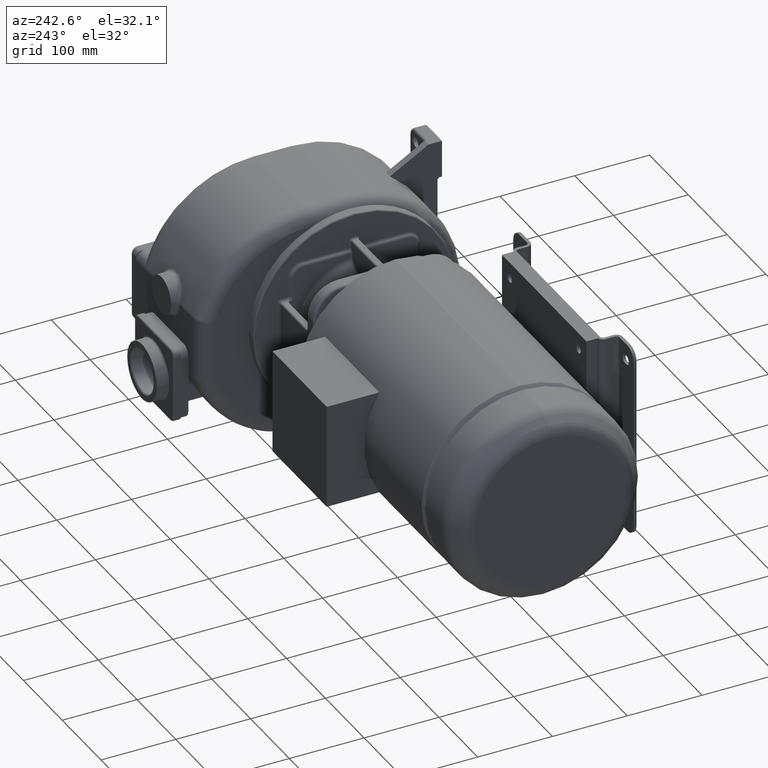
[diagram: clean part render]
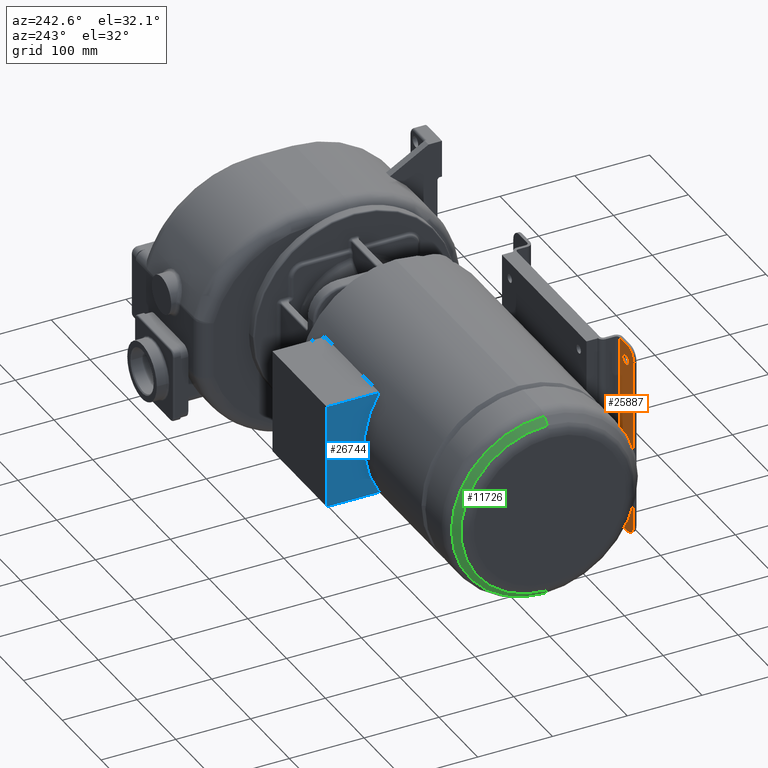
[diagram: same view with three faces highlighted in distinct colors, each labeled with its STEP entity id]
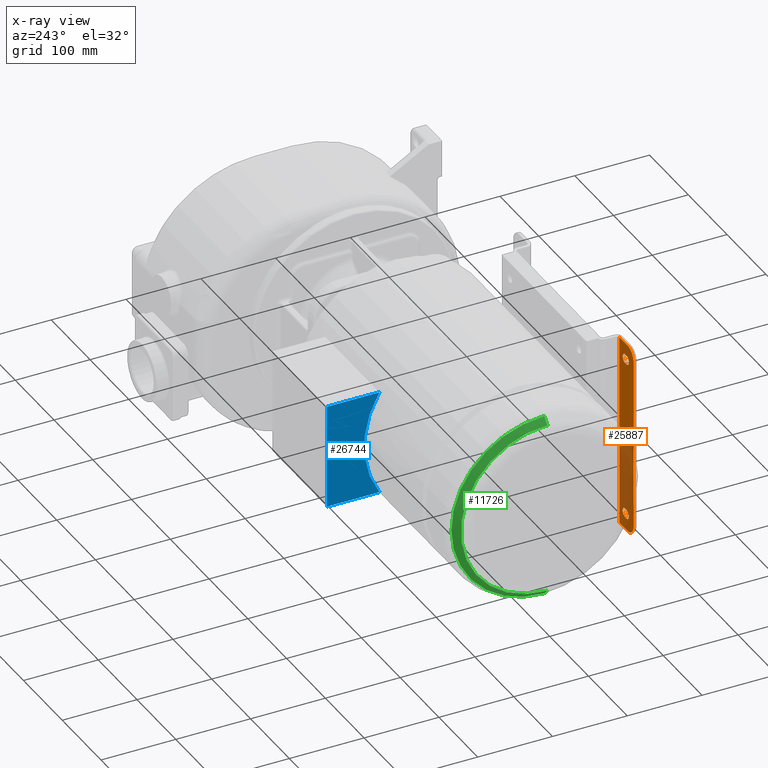
[diagram: x-ray of the same camera — body ghosted, the three highlighted faces saturated]
A machine part, auxiliary view with three faces highlighted in distinct colors.
The next image is the same camera in x-ray (body ghosted, the three faces saturated) — at least one of them is partly hidden behind the body in this view.
Their STEP definitions:

[orange] entity #25887 — the highlighted planar face has unit normal (0, 1, 0).
#9779=DIRECTION('',(-1.E0,0.E0,0.E0));
#9780=VECTOR('',#9779,2.1E1);
#9781=CARTESIAN_POINT('',(1.21E2,-1.56E2,1.3E2));
#9782=LINE('',#9781,#9780);
#9791=CARTESIAN_POINT('',(1.E2,-1.56E2,1.15E2));
#9792=DIRECTION('',(0.E0,1.E0,0.E0));
#9793=DIRECTION('',(-1.E0,0.E0,-2.463214817302E-14));
#9794=AXIS2_PLACEMENT_3D('',#9791,#9792,#9793);
#9796=CARTESIAN_POINT('',(1.E2,-1.56E2,-1.15E2));
#9797=DIRECTION('',(0.E0,1.E0,0.E0));
#9798=DIRECTION('',(-1.231607408651E-14,0.E0,-1.E0));
#9799=AXIS2_PLACEMENT_3D('',#9796,#9797,#9798);
#9801=DIRECTION('',(0.E0,0.E0,1.E0));
#9802=VECTOR('',#9801,2.6E2);
#9803=CARTESIAN_POINT('',(1.21E2,-1.56E2,-1.3E2));
#9804=LINE('',#9803,#9802);
#9805=CARTESIAN_POINT('',(1.03E2,-1.56E2,1.08E2));
#9806=DIRECTION('',(0.E0,1.E0,0.E0));
#9807=DIRECTION('',(0.E0,0.E0,-1.E0));
#9808=AXIS2_PLACEMENT_3D('',#9805,#9806,#9807);
#9810=DIRECTION('',(-1.E0,0.E0,0.E0));
#9811=VECTOR('',#9810,4.E0);
#9812=CARTESIAN_POINT('',(1.07E2,-1.56E2,1.14E2));
#9813=LINE('',#9812,#9811);
#9814=CARTESIAN_POINT('',(1.07E2,-1.56E2,1.08E2));
#9815=DIRECTION('',(0.E0,1.E0,0.E0));
#9816=DIRECTION('',(0.E0,0.E0,1.E0));
#9817=AXIS2_PLACEMENT_3D('',#9814,#9815,#9816);
#9819=DIRECTION('',(1.E0,0.E0,0.E0));
#9820=VECTOR('',#9819,4.E0);
#9821=CARTESIAN_POINT('',(1.03E2,-1.56E2,1.02E2));
#9822=LINE('',#9821,#9820);
#9823=CARTESIAN_POINT('',(1.03E2,-1.56E2,-1.08E2));
#9824=DIRECTION('',(0.E0,1.E0,0.E0));
#9825=DIRECTION('',(0.E0,0.E0,-1.E0));
#9826=AXIS2_PLACEMENT_3D('',#9823,#9824,#9825);
#9828=DIRECTION('',(-1.E0,0.E0,0.E0));
#9829=VECTOR('',#9828,4.E0);
#9830=CARTESIAN_POINT('',(1.07E2,-1.56E2,-1.02E2));
#9831=LINE('',#9830,#9829);
#9832=CARTESIAN_POINT('',(1.07E2,-1.56E2,-1.08E2));
#9833=DIRECTION('',(0.E0,1.E0,0.E0));
#9834=DIRECTION('',(0.E0,0.E0,1.E0));
#9835=AXIS2_PLACEMENT_3D('',#9832,#9833,#9834);
#9837=DIRECTION('',(1.E0,0.E0,0.E0));
#9838=VECTOR('',#9837,4.E0);
#9839=CARTESIAN_POINT('',(1.03E2,-1.56E2,-1.14E2));
#9840=LINE('',#9839,#9838);
#9853=DIRECTION('',(0.E0,0.E0,1.E0));
#9854=VECTOR('',#9853,2.3E2);
#9855=CARTESIAN_POINT('',(8.5E1,-1.56E2,-1.15E2));
#9856=LINE('',#9855,#9854);
#9915=DIRECTION('',(-1.E0,0.E0,0.E0));
#9916=VECTOR('',#9915,2.1E1);
#9917=CARTESIAN_POINT('',(1.21E2,-1.56E2,-1.3E2));
#9918=LINE('',#9917,#9916);
#10499=CARTESIAN_POINT('',(1.21E2,-1.56E2,-1.3E2));
#10500=VERTEX_POINT('',#10499);
#10511=CARTESIAN_POINT('',(1.21E2,-1.56E2,1.3E2));
#10512=VERTEX_POINT('',#10511);
#10545=CARTESIAN_POINT('',(8.5E1,-1.56E2,1.15E2));
#10546=CARTESIAN_POINT('',(1.E2,-1.56E2,1.3E2));
#10547=VERTEX_POINT('',#10545);
#10548=VERTEX_POINT('',#10546);
#10561=CARTESIAN_POINT('',(1.E2,-1.56E2,-1.3E2));
#10562=CARTESIAN_POINT('',(8.5E1,-1.56E2,-1.15E2));
#10563=VERTEX_POINT('',#10561);
#10564=VERTEX_POINT('',#10562);
#10617=CARTESIAN_POINT('',(1.03E2,-1.56E2,1.02E2));
#10618=CARTESIAN_POINT('',(1.03E2,-1.56E2,1.14E2));
#10619=VERTEX_POINT('',#10617);
#10620=VERTEX_POINT('',#10618);
#10621=CARTESIAN_POINT('',(1.07E2,-1.56E2,1.02E2));
#10622=VERTEX_POINT('',#10621);
#10623=CARTESIAN_POINT('',(1.07E2,-1.56E2,1.14E2));
#10624=VERTEX_POINT('',#10623);
#10625=CARTESIAN_POINT('',(1.03E2,-1.56E2,-1.14E2));
#10626=CARTESIAN_POINT('',(1.03E2,-1.56E2,-1.02E2));
#10627=VERTEX_POINT('',#10625);
#10628=VERTEX_POINT('',#10626);
#10629=CARTESIAN_POINT('',(1.07E2,-1.56E2,-1.14E2));
#10630=VERTEX_POINT('',#10629);
#10631=CARTESIAN_POINT('',(1.07E2,-1.56E2,-1.02E2));
#10632=VERTEX_POINT('',#10631);
#25851=CARTESIAN_POINT('',(1.21E2,-1.56E2,-1.3E2));
#25852=DIRECTION('',(0.E0,1.E0,0.E0));
#25853=DIRECTION('',(-1.E0,0.E0,0.E0));
#25854=AXIS2_PLACEMENT_3D('',#25851,#25852,#25853);
#25855=PLANE('',#25854);
#25856=ORIENTED_EDGE('',*,*,#25841,.F.);
#25858=ORIENTED_EDGE('',*,*,#25857,.F.);
#25860=ORIENTED_EDGE('',*,*,#25859,.F.);
#25862=ORIENTED_EDGE('',*,*,#25861,.F.);
#25863=ORIENTED_EDGE('',*,*,#25803,.T.);
#25864=ORIENTED_EDGE('',*,*,#25828,.T.);
#25865=EDGE_LOOP('',(#25856,#25858,#25860,#25862,#25863,#25864));
#25866=FACE_OUTER_BOUND('',#25865,.F.);
#25868=ORIENTED_EDGE('',*,*,#25867,.T.);
#25870=ORIENTED_EDGE('',*,*,#25869,.F.);
#25872=ORIENTED_EDGE('',*,*,#25871,.T.);
#25874=ORIENTED_EDGE('',*,*,#25873,.F.);
#25875=EDGE_LOOP('',(#25868,#25870,#25872,#25874));
#25876=FACE_BOUND('',#25875,.F.);
#25878=ORIENTED_EDGE('',*,*,#25877,.T.);
#25880=ORIENTED_EDGE('',*,*,#25879,.F.);
#25882=ORIENTED_EDGE('',*,*,#25881,.T.);
#25884=ORIENTED_EDGE('',*,*,#25883,.F.);
#25885=EDGE_LOOP('',(#25878,#25880,#25882,#25884));
#25886=FACE_BOUND('',#25885,.F.);
#25887=ADVANCED_FACE('',(#25866,#25876,#25886),#25855,.T.);
#9795=CIRCLE('',#9794,1.5E1);
#9800=CIRCLE('',#9799,1.5E1);
#9809=CIRCLE('',#9808,6.E0);
#9818=CIRCLE('',#9817,6.E0);
#9827=CIRCLE('',#9826,6.E0);
#9836=CIRCLE('',#9835,6.E0);
#25803=EDGE_CURVE('',#10500,#10512,#9804,.T.);
#25828=EDGE_CURVE('',#10512,#10548,#9782,.T.);
#25841=EDGE_CURVE('',#10547,#10548,#9795,.T.);
#25857=EDGE_CURVE('',#10564,#10547,#9856,.T.);
#25859=EDGE_CURVE('',#10563,#10564,#9800,.T.);
#25861=EDGE_CURVE('',#10500,#10563,#9918,.T.);
#25867=EDGE_CURVE('',#10619,#10620,#9809,.T.);
#25869=EDGE_CURVE('',#10624,#10620,#9813,.T.);
#25871=EDGE_CURVE('',#10624,#10622,#9818,.T.);
#25873=EDGE_CURVE('',#10619,#10622,#9822,.T.);
#25877=EDGE_CURVE('',#10627,#10628,#9827,.T.);
#25879=EDGE_CURVE('',#10632,#10628,#9831,.T.);
#25881=EDGE_CURVE('',#10632,#10630,#9836,.T.);
#25883=EDGE_CURVE('',#10627,#10630,#9840,.T.);

[blue] entity #26744 — the highlighted planar face has unit normal (-1, 0, 0).
#111=CARTESIAN_POINT('',(2.28E2,0.E0,0.E0));
#112=DIRECTION('',(1.E0,0.E0,0.E0));
#113=DIRECTION('',(0.E0,8.426500884695E-1,-5.384615384615E-1));
#114=AXIS2_PLACEMENT_3D('',#111,#112,#113);
#10345=DIRECTION('',(0.E0,1.E0,0.E0));
#10346=VECTOR('',#10345,7.045548849897E1);
#10347=CARTESIAN_POINT('',(2.28E2,1.095445115010E2,-7.E1));
#10348=LINE('',#10347,#10346);
#10357=DIRECTION('',(0.E0,1.E0,0.E0));
#10358=VECTOR('',#10357,7.045548849897E1);
#10359=CARTESIAN_POINT('',(2.28E2,1.095445115010E2,7.E1));
#10360=LINE('',#10359,#10358);
#10361=DIRECTION('',(0.E0,0.E0,1.E0));
#10362=VECTOR('',#10361,1.4E2);
#10363=CARTESIAN_POINT('',(2.28E2,1.8E2,-7.E1));
#10364=LINE('',#10363,#10362);
#10409=CARTESIAN_POINT('',(2.28E2,1.8E2,-7.E1));
#10410=CARTESIAN_POINT('',(2.28E2,1.8E2,7.E1));
#10411=VERTEX_POINT('',#10409);
#10412=VERTEX_POINT('',#10410);
#10417=CARTESIAN_POINT('',(2.28E2,1.095445115010E2,-7.E1));
#10418=CARTESIAN_POINT('',(2.28E2,1.095445115010E2,7.E1));
#10419=VERTEX_POINT('',#10417);
#10420=VERTEX_POINT('',#10418);
#26730=CARTESIAN_POINT('',(2.28E2,0.E0,-7.E1));
#26731=DIRECTION('',(-1.E0,0.E0,0.E0));
#26732=DIRECTION('',(0.E0,0.E0,1.E0));
#26733=AXIS2_PLACEMENT_3D('',#26730,#26731,#26732);
#26734=PLANE('',#26733);
#26735=ORIENTED_EDGE('',*,*,#11845,.F.);
#26737=ORIENTED_EDGE('',*,*,#26736,.T.);
#26739=ORIENTED_EDGE('',*,*,#26738,.T.);
#26741=ORIENTED_EDGE('',*,*,#26740,.F.);
#26742=EDGE_LOOP('',(#26735,#26737,#26739,#26741));
#26743=FACE_OUTER_BOUND('',#26742,.F.);
#26744=ADVANCED_FACE('',(#26743),#26734,.T.);
#115=CIRCLE('',#114,1.3E2);
#11845=EDGE_CURVE('',#10419,#10420,#115,.T.);
#26736=EDGE_CURVE('',#10419,#10411,#10348,.T.);
#26738=EDGE_CURVE('',#10411,#10412,#10364,.T.);
#26740=EDGE_CURVE('',#10420,#10412,#10360,.T.);

[green] entity #11726 — the highlighted conical surface has half-angle 45 deg.
#21=CARTESIAN_POINT('',(1.414210960668E1,1.065814103640E-14,
9.947598300641E-14));
#22=DIRECTION('',(1.E0,0.E0,0.E0));
#23=DIRECTION('',(0.E0,1.308207678507E-10,-1.E0));
#24=AXIS2_PLACEMENT_3D('',#21,#22,#23);
#26=DIRECTION('',(7.071067110837E-1,-4.891731237620E-10,7.071068512894E-1));
#27=VECTOR('',#26,1.171569510318E1);
#28=CARTESIAN_POINT('',(5.857862974211E0,-8.106857007333E-8,1.158578859466E2));
#29=LINE('',#28,#27);
#30=CARTESIAN_POINT('',(5.857862974212E0,1.065814103640E-14,
9.947598300641E-14));
#31=DIRECTION('',(-1.E0,0.E0,0.E0));
#32=DIRECTION('',(0.E0,-1.308214533298E-10,1.E0));
#33=AXIS2_PLACEMENT_3D('',#30,#31,#32);
#78=DIRECTION('',(7.071067110837E-1,4.891715543265E-10,-7.071068512894E-1));
#79=VECTOR('',#78,1.171569510318E1);
#80=CARTESIAN_POINT('',(5.857862974211E0,8.106858788188E-8,-1.158578859466E2));
#81=LINE('',#80,#79);
#10397=CARTESIAN_POINT('',(1.414210960668E1,-1.624040311198E-8,
1.241421342217E2));
#10398=CARTESIAN_POINT('',(1.414210960668E1,1.624038594324E-8,
-1.241421342217E2));
#10399=VERTEX_POINT('',#10397);
#10400=VERTEX_POINT('',#10398);
#10405=CARTESIAN_POINT('',(5.857862974212E0,1.515662636566E-8,
-1.158578859466E2));
#10406=CARTESIAN_POINT('',(5.857862974212E0,-1.515663148304E-8,
1.158578859466E2));
#10407=VERTEX_POINT('',#10405);
#10408=VERTEX_POINT('',#10406);
#11712=CARTESIAN_POINT('',(9.999986290446E0,1.065814103640E-14,
9.947598300641E-14));
#11713=DIRECTION('',(1.E0,0.E0,0.E0));
#11714=DIRECTION('',(0.E0,0.E0,-1.E0));
#11715=AXIS2_PLACEMENT_3D('',#11712,#11713,#11714);
#11716=CONICAL_SURFACE('',#11715,1.200000100841E2,4.500000568033E1);
#11718=ORIENTED_EDGE('',*,*,#11717,.T.);
#11720=ORIENTED_EDGE('',*,*,#11719,.F.);
#11721=ORIENTED_EDGE('',*,*,#11706,.T.);
#11723=ORIENTED_EDGE('',*,*,#11722,.T.);
#11724=EDGE_LOOP('',(#11718,#11720,#11721,#11723));
#11725=FACE_OUTER_BOUND('',#11724,.F.);
#11726=ADVANCED_FACE('',(#11725),#11716,.T.);
#25=CIRCLE('',#24,1.241421342217E2);
#34=CIRCLE('',#33,1.158578859466E2);
#11706=EDGE_CURVE('',#10408,#10407,#34,.T.);
#11717=EDGE_CURVE('',#10400,#10399,#25,.T.);
#11719=EDGE_CURVE('',#10408,#10399,#29,.T.);
#11722=EDGE_CURVE('',#10407,#10400,#81,.T.);